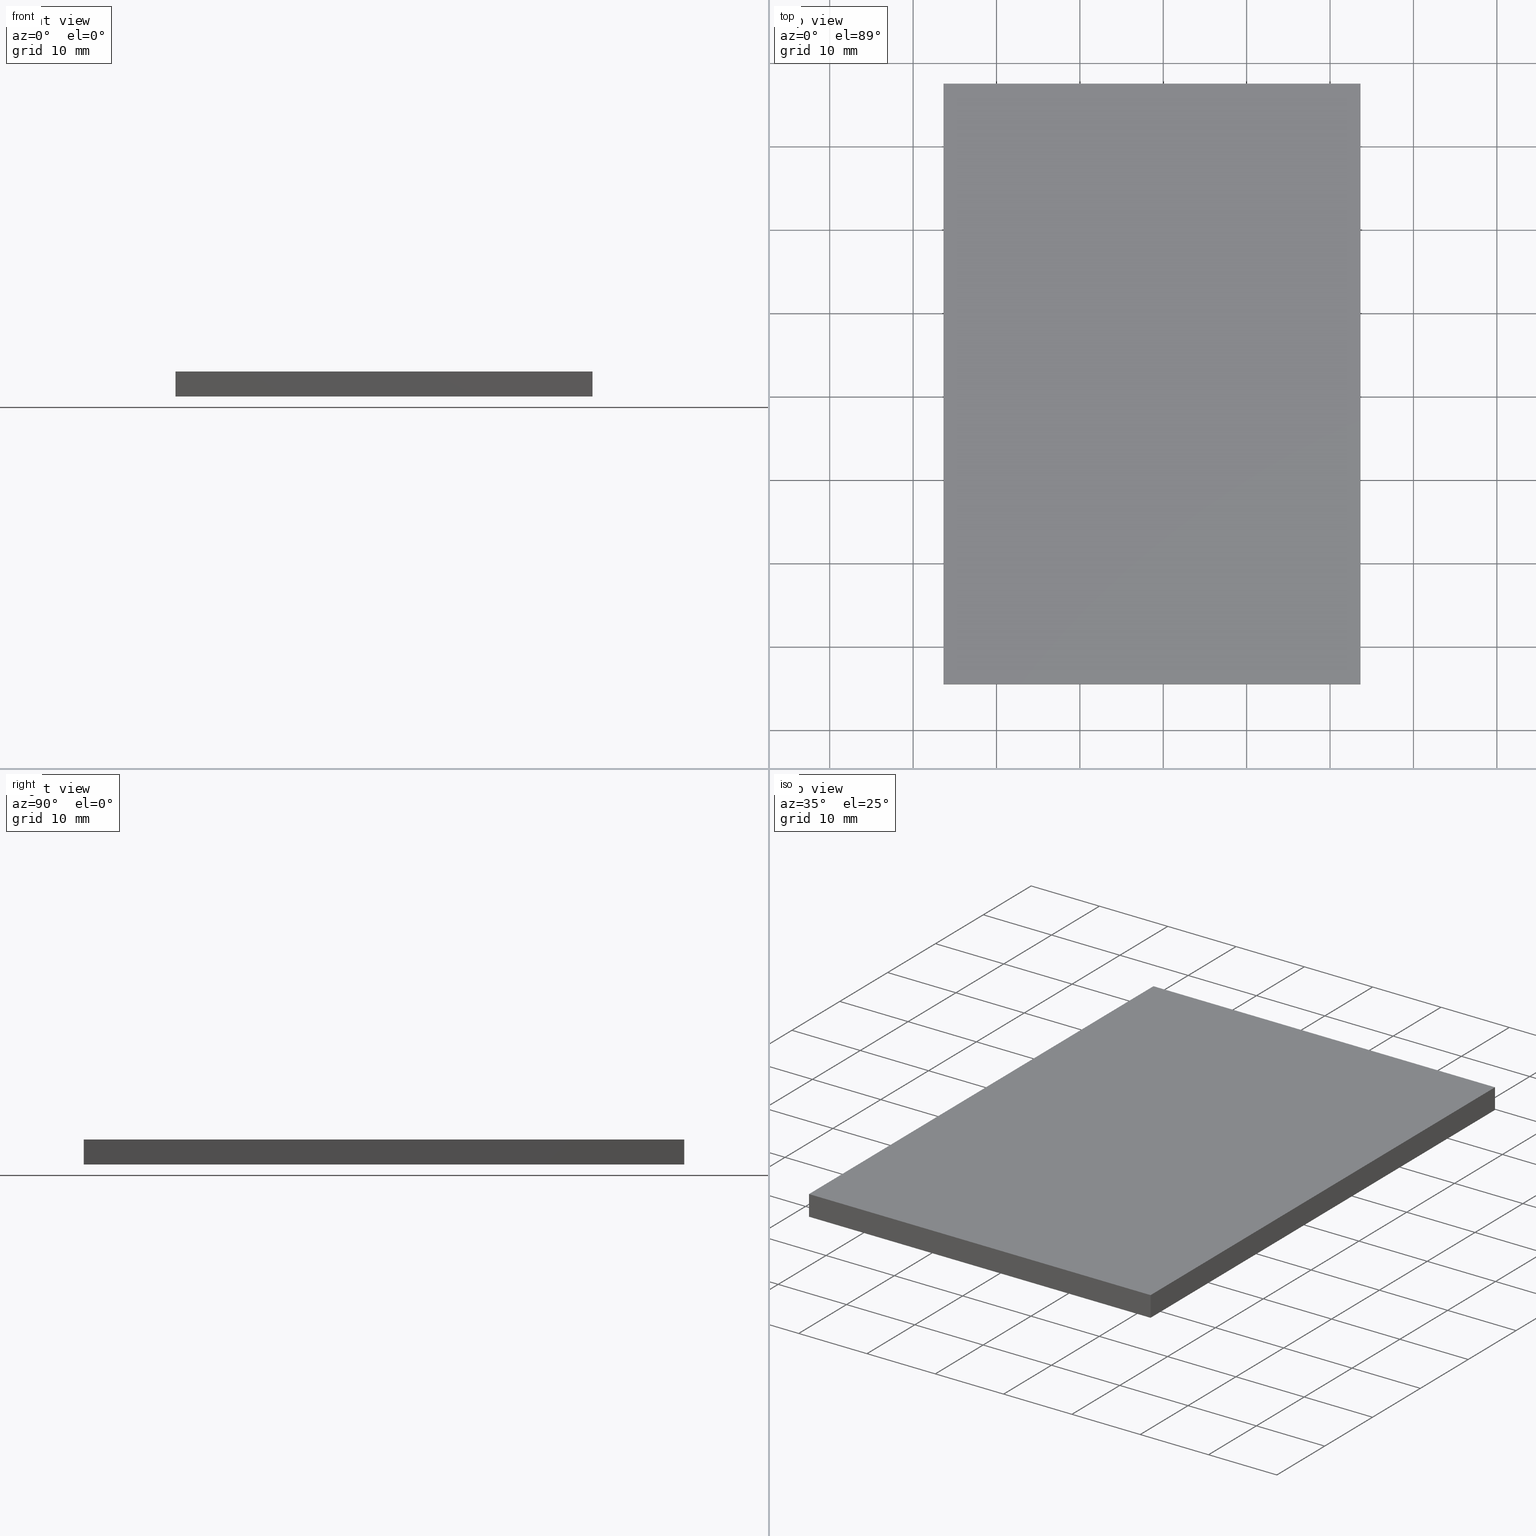
[diagram: canonical four-view strip — front | top / right | iso, engineering-drawing reading convention]
A machine part, canonical four-view strip (front | top / right | iso — engineering-drawing reading convention). The complete STEP part file that produces these views, byte-faithful:
ISO-10303-21;
HEADER;
FILE_DESCRIPTION (( 'STEP AP203' ),
    '1' );
FILE_NAME ('340535.STEP',
    '2019-07-30T07:53:44',
    ( '' ),
    ( '' ),
    'SwSTEP 2.0',
    'SolidWorks 2016',
    '' );
FILE_SCHEMA (( 'CONFIG_CONTROL_DESIGN' ));
ENDSEC;

DATA;
#1 = CARTESIAN_POINT ( 'NONE',  ( -6.351626016260153700, -64.47967479674797200, 3.000000000000000000 ) ) ;
#2 = AXIS2_PLACEMENT_3D ( 'NONE', #311, #208, #27 ) ;
#3 = ADVANCED_BREP_SHAPE_REPRESENTATION ( '340535', ( #107, #2 ), #31 ) ;
#4 = CC_DESIGN_PERSON_AND_ORGANIZATION_ASSIGNMENT ( #105, #34, ( #228 ) ) ;
#5 = LOCAL_TIME ( 15, 53, 44.00000000000000000, #176 ) ;
#6 = PRODUCT_DEFINITION ( 'δ֪', '', #228, #178 ) ;
#7 = PERSON_AND_ORGANIZATION ( #199, #206 ) ;
#8 = LINE ( 'NONE', #118, #186 ) ;
#9 = PERSON_AND_ORGANIZATION ( #199, #206 ) ;
#10 = APPROVAL_STATUS ( 'not_yet_approved' ) ;
#11 = PRODUCT_DEFINITION ( 'δ֪', '', #312, #290 ) ;
#12 = DIRECTION ( 'NONE',  ( 1.000000000000000000, 0.0000000000000000000, 0.0000000000000000000 ) ) ;
#13 = APPLICATION_CONTEXT ( 'configuration controlled 3d designs of mechanical parts and assemblies' ) ;
#14 = DIRECTION ( 'NONE',  ( -0.0000000000000000000, 0.0000000000000000000, 1.000000000000000000 ) ) ;
#15 = PERSON_AND_ORGANIZATION_ROLE ( 'design_supplier' ) ;
#16 = DIRECTION ( 'NONE',  ( 0.0000000000000000000, 1.000000000000000000, 0.0000000000000000000 ) ) ;
#17 = APPROVAL_STATUS ( 'not_yet_approved' ) ;
#18 = CARTESIAN_POINT ( 'NONE',  ( -6.351626016260162500, 7.520325203252024700, 3.000000000000000000 ) ) ;
#19 = CC_DESIGN_PERSON_AND_ORGANIZATION_ASSIGNMENT ( #112, #193, ( #312 ) ) ;
#20 = VECTOR ( 'NONE', #134, 1000.000000000000000 ) ;
#21 = CARTESIAN_POINT ( 'NONE',  ( 0.0000000000000000000, 0.0000000000000000000, 0.0000000000000000000 ) ) ;
#22 = ORIENTED_EDGE ( 'NONE', *, *, #127, .T. ) ;
#23 = DIRECTION ( 'NONE',  ( -1.000000000000000000, -9.637352644315595200E-017, 0.0000000000000000000 ) ) ;
#24 = AXIS2_PLACEMENT_3D ( 'NONE', #274, #220, #102 ) ;
#25 = APPROVAL ( #214, 'δָ��' ) ;
#26 = DATE_AND_TIME ( #79, #309 ) ;
#27 = DIRECTION ( 'NONE',  ( 1.000000000000000000, 0.0000000000000000000, 0.0000000000000000000 ) ) ;
#28 = ORIENTED_EDGE ( 'NONE', *, *, #224, .T. ) ;
#29 = EDGE_LOOP ( 'NONE', ( #22, #314, #57, #277 ) ) ;
#30 = CALENDAR_DATE ( 2019, 30, 7 ) ;
#31 =( GEOMETRIC_REPRESENTATION_CONTEXT ( 3 ) GLOBAL_UNCERTAINTY_ASSIGNED_CONTEXT ( ( #286 ) ) GLOBAL_UNIT_ASSIGNED_CONTEXT ( ( #135, #41, #207 ) ) REPRESENTATION_CONTEXT ( 'NONE', 'WORKASPACE' ) );
#32 = LINE ( 'NONE', #301, #185 ) ;
#33 = DIRECTION ( 'NONE',  ( -1.000000000000000000, -0.0000000000000000000, -0.0000000000000000000 ) ) ;
#34 = PERSON_AND_ORGANIZATION_ROLE ( 'design_supplier' ) ;
#35 = ADVANCED_FACE ( 'NONE', ( #85 ), #151, .T. ) ;
#36 = APPROVAL_DATE_TIME ( #161, #128 ) ;
#37 = VECTOR ( 'NONE', #152, 1000.000000000000000 ) ;
#38 = CC_DESIGN_DATE_AND_TIME_ASSIGNMENT ( #307, #119, ( #6 ) ) ;
#39 = LINE ( 'NONE', #73, #37 ) ;
#40 = EDGE_CURVE ( 'NONE', #138, #247, #291, .T. ) ;
#41 =( NAMED_UNIT ( * ) PLANE_ANGLE_UNIT ( ) SI_UNIT ( $, .RADIAN. ) );
#42 = CALENDAR_DATE ( 2019, 30, 7 ) ;
#43 = CALENDAR_DATE ( 2019, 30, 7 ) ;
#44 = PERSON_AND_ORGANIZATION ( #199, #206 ) ;
#45 = DIRECTION ( 'NONE',  ( 0.0000000000000000000, 0.0000000000000000000, 1.000000000000000000 ) ) ;
#46 = DATE_AND_TIME ( #110, #183 ) ;
#47 = CARTESIAN_POINT ( 'NONE',  ( 43.64837398373984500, 7.520325203252024700, 3.000000000000000000 ) ) ;
#48 = VECTOR ( 'NONE', #213, 1000.000000000000000 ) ;
#49 = ORIENTED_EDGE ( 'NONE', *, *, #127, .F. ) ;
#50 = DIRECTION ( 'NONE',  ( -9.637352644315595200E-017, 1.000000000000000000, -0.0000000000000000000 ) ) ;
#51 = LOCAL_TIME ( 15, 53, 44.00000000000000000, #181 ) ;
#52 = LINE ( 'NONE', #235, #167 ) ;
#53 = CARTESIAN_POINT ( 'NONE',  ( -6.351626016260153700, -64.47967479674797200, 3.000000000000000000 ) ) ;
#54 = PERSON_AND_ORGANIZATION_ROLE ( 'classification_officer' ) ;
#55 = COORDINATED_UNIVERSAL_TIME_OFFSET ( 8, 0, .AHEAD. ) ;
#56 = CC_DESIGN_APPROVAL ( #25, ( #6 ) ) ;
#57 = ORIENTED_EDGE ( 'NONE', *, *, #159, .F. ) ;
#58 = PERSON_AND_ORGANIZATION_ROLE ( 'design_owner' ) ;
#59 = LINE ( 'NONE', #287, #106 ) ;
#60 = APPLICATION_CONTEXT ( 'configuration controlled 3d designs of mechanical parts and assemblies' ) ;
#61 = VECTOR ( 'NONE', #304, 1000.000000000000000 ) ;
#62 = ORIENTED_EDGE ( 'NONE', *, *, #198, .F. ) ;
#63 = FACE_OUTER_BOUND ( 'NONE', #122, .T. ) ;
#64 = CC_DESIGN_PERSON_AND_ORGANIZATION_ASSIGNMENT ( #142, #71, ( #84 ) ) ;
#65 = VERTEX_POINT ( 'NONE', #264 ) ;
#66 = CC_DESIGN_PERSON_AND_ORGANIZATION_ASSIGNMENT ( #280, #305, ( #150 ) ) ;
#67 = CC_DESIGN_PERSON_AND_ORGANIZATION_ASSIGNMENT ( #111, #149, ( #228 ) ) ;
#68 = CC_DESIGN_PERSON_AND_ORGANIZATION_ASSIGNMENT ( #140, #233, ( #6 ) ) ;
#69 = APPROVAL_PERSON_ORGANIZATION ( #188, #83, #265 ) ;
#70 = APPROVAL_PERSON_ORGANIZATION ( #141, #128, #126 ) ;
#71 = PERSON_AND_ORGANIZATION_ROLE ( 'classification_officer' ) ;
#72 = ORIENTED_EDGE ( 'NONE', *, *, #103, .F. ) ;
#73 = CARTESIAN_POINT ( 'NONE',  ( -6.351626016260162500, 7.520325203252024700, 0.0000000000000000000 ) ) ;
#74 = SHAPE_DEFINITION_REPRESENTATION ( #204, #3 ) ;
#75 = CC_DESIGN_DATE_AND_TIME_ASSIGNMENT ( #296, #261, ( #84 ) ) ;
#76 = DIRECTION ( 'NONE',  ( 0.0000000000000000000, -1.000000000000000000, 0.0000000000000000000 ) ) ;
#77 = ORIENTED_EDGE ( 'NONE', *, *, #187, .T. ) ;
#78 = APPROVAL_DATE_TIME ( #92, #170 ) ;
#79 = CALENDAR_DATE ( 2019, 30, 7 ) ;
#80 = DIRECTION ( 'NONE',  ( 1.000000000000000000, 1.204669080539449300E-016, -0.0000000000000000000 ) ) ;
#81 = APPROVAL_DATE_TIME ( #215, #252 ) ;
#82 = LOCAL_TIME ( 15, 53, 44.00000000000000000, #55 ) ;
#83 = APPROVAL ( #266, 'δָ��' ) ;
#84 = SECURITY_CLASSIFICATION ( '', '', #236 ) ;
#85 = FACE_OUTER_BOUND ( 'NONE', #137, .T. ) ;
#86 = LINE ( 'NONE', #269, #20 ) ;
#87 = EDGE_CURVE ( 'NONE', #65, #288, #32, .T. ) ;
#88 = APPROVAL ( #120, 'δָ��' ) ;
#89 = MECHANICAL_CONTEXT ( 'NONE', #255, 'mechanical' ) ;
#90 = ORIENTED_EDGE ( 'NONE', *, *, #177, .T. ) ;
#91 = APPLICATION_CONTEXT ( 'configuration controlled 3d designs of mechanical parts and assemblies' ) ;
#92 = DATE_AND_TIME ( #223, #246 ) ;
#93 = CARTESIAN_POINT ( 'NONE',  ( -6.351626016260162500, 7.520325203252024700, 3.000000000000000000 ) ) ;
#94 = CC_DESIGN_APPROVAL ( #83, ( #312 ) ) ;
#95 = CARTESIAN_POINT ( 'NONE',  ( -6.351626016260153700, -64.47967479674797200, 0.0000000000000000000 ) ) ;
#96 = DIRECTION ( 'NONE',  ( 1.204669080539449300E-016, -1.000000000000000000, 0.0000000000000000000 ) ) ;
#97 = DIRECTION ( 'NONE',  ( 0.0000000000000000000, -0.0000000000000000000, 1.000000000000000000 ) ) ;
#98 = DIRECTION ( 'NONE',  ( 0.0000000000000000000, -0.0000000000000000000, -1.000000000000000000 ) ) ;
#99 = DIRECTION ( 'NONE',  ( 1.000000000000000000, 0.0000000000000000000, 0.0000000000000000000 ) ) ;
#100 = FACE_OUTER_BOUND ( 'NONE', #173, .T. ) ;
#101 = APPROVAL_PERSON_ORGANIZATION ( #9, #25, #217 ) ;
#102 = DIRECTION ( 'NONE',  ( 1.000000000000000000, 0.0000000000000000000, 0.0000000000000000000 ) ) ;
#103 = EDGE_CURVE ( 'NONE', #267, #138, #39, .T. ) ;
#104 = CARTESIAN_POINT ( 'NONE',  ( -6.351626016260162500, 7.520325203252024700, 3.000000000000000000 ) ) ;
#105 = PERSON_AND_ORGANIZATION ( #199, #206 ) ;
#106 = VECTOR ( 'NONE', #115, 1000.000000000000000 ) ;
#107 = MANIFOLD_SOLID_BREP ( '͹̨-����1', #155 ) ;
#108 = COORDINATED_UNIVERSAL_TIME_OFFSET ( 8, 0, .AHEAD. ) ;
#109 = PLANE ( 'NONE',  #190 ) ;
#110 = CALENDAR_DATE ( 2019, 30, 7 ) ;
#111 = PERSON_AND_ORGANIZATION ( #199, #206 ) ;
#112 = PERSON_AND_ORGANIZATION ( #199, #206 ) ;
#113 = DIRECTION ( 'NONE',  ( -0.0000000000000000000, -0.0000000000000000000, -1.000000000000000000 ) ) ;
#114 = LOCAL_TIME ( 15, 53, 44.00000000000000000, #163 ) ;
#115 = DIRECTION ( 'NONE',  ( 1.000000000000000000, 0.0000000000000000000, 0.0000000000000000000 ) ) ;
#116 = LINE ( 'NONE', #298, #61 ) ;
#117 = APPROVAL_ROLE ( '' ) ;
#118 = CARTESIAN_POINT ( 'NONE',  ( -6.351626016260162500, 7.520325203252024700, 3.000000000000000000 ) ) ;
#119 = DATE_TIME_ROLE ( 'creation_date' ) ;
#120 = APPROVAL_STATUS ( 'not_yet_approved' ) ;
#121 = CALENDAR_DATE ( 2019, 30, 7 ) ;
#122 = EDGE_LOOP ( 'NONE', ( #131, #254, #62, #225 ) ) ;
#123 = PLANE ( 'NONE',  #24 ) ;
#124 = COORDINATED_UNIVERSAL_TIME_OFFSET ( 8, 0, .AHEAD. ) ;
#125 = DIRECTION ( 'NONE',  ( -0.0000000000000000000, -0.0000000000000000000, -1.000000000000000000 ) ) ;
#126 = APPROVAL_ROLE ( '' ) ;
#127 = EDGE_CURVE ( 'NONE', #288, #267, #282, .T. ) ;
#128 = APPROVAL ( #242, 'δָ��' ) ;
#129 = CARTESIAN_POINT ( 'NONE',  ( 43.64837398373985200, -64.47967479674797200, 0.0000000000000000000 ) ) ;
#130 = APPROVAL_PERSON_ORGANIZATION ( #222, #88, #172 ) ;
#131 = ORIENTED_EDGE ( 'NONE', *, *, #103, .T. ) ;
#132 = LOCAL_TIME ( 15, 53, 44.00000000000000000, #295 ) ;
#133 = PERSON_AND_ORGANIZATION ( #199, #206 ) ;
#134 = DIRECTION ( 'NONE',  ( -0.0000000000000000000, -0.0000000000000000000, -1.000000000000000000 ) ) ;
#135 =( LENGTH_UNIT ( ) NAMED_UNIT ( * ) SI_UNIT ( .MILLI., .METRE. ) );
#136 = DIRECTION ( 'NONE',  ( 9.637352644315595200E-017, -1.000000000000000000, 0.0000000000000000000 ) ) ;
#137 = EDGE_LOOP ( 'NONE', ( #302, #28, #196, #263 ) ) ;
#138 = VERTEX_POINT ( 'NONE', #259 ) ;
#139 = CALENDAR_DATE ( 2019, 30, 7 ) ;
#140 = PERSON_AND_ORGANIZATION ( #199, #206 ) ;
#141 = PERSON_AND_ORGANIZATION ( #199, #206 ) ;
#142 = PERSON_AND_ORGANIZATION ( #199, #206 ) ;
#143 = ORIENTED_EDGE ( 'NONE', *, *, #224, .F. ) ;
#144 = PRODUCT_RELATED_PRODUCT_CATEGORY ( 'detail', '', ( #150 ) ) ;
#145 = ORIENTED_EDGE ( 'NONE', *, *, #87, .F. ) ;
#146 = APPROVAL_PERSON_ORGANIZATION ( #44, #170, #117 ) ;
#147 = MECHANICAL_CONTEXT ( 'NONE', #13, 'mechanical' ) ;
#148 = DIRECTION ( 'NONE',  ( -0.0000000000000000000, -0.0000000000000000000, -1.000000000000000000 ) ) ;
#149 = PERSON_AND_ORGANIZATION_ROLE ( 'creator' ) ;
#150 = PRODUCT ( '340535', '340535', '', ( #147 ) ) ;
#151 = PLANE ( 'NONE',  #203 ) ;
#152 = DIRECTION ( 'NONE',  ( -1.000000000000000000, -0.0000000000000000000, -0.0000000000000000000 ) ) ;
#153 = APPLICATION_PROTOCOL_DEFINITION ( 'international standard', 'config_control_design', 1994, #60 ) ;
#154 = CC_DESIGN_PERSON_AND_ORGANIZATION_ASSIGNMENT ( #276, #54, ( #226 ) ) ;
#155 = CLOSED_SHELL ( 'NONE', ( #283, #229, #250, #211, #35, #262 ) ) ;
#156 = VECTOR ( 'NONE', #148, 1000.000000000000000 ) ;
#157 = LOCAL_TIME ( 15, 53, 44.00000000000000000, #279 ) ;
#158 = PRODUCT_DEFINITION_SHAPE ( 'NONE', 'NONE',  #11 ) ;
#159 = EDGE_CURVE ( 'NONE', #65, #313, #310, .T. ) ;
#160 = CARTESIAN_POINT ( 'NONE',  ( 43.64837398373984500, 7.520325203252024700, 3.000000000000000000 ) ) ;
#161 = DATE_AND_TIME ( #299, #184 ) ;
#162 = CC_DESIGN_APPROVAL ( #88, ( #84 ) ) ;
#163 = COORDINATED_UNIVERSAL_TIME_OFFSET ( 8, 0, .AHEAD. ) ;
#164 = AXIS2_PLACEMENT_3D ( 'NONE', #93, #76, #98 ) ;
#165 = PRODUCT_RELATED_PRODUCT_CATEGORY ( 'detail', '', ( #179 ) ) ;
#166 = VERTEX_POINT ( 'NONE', #1 ) ;
#167 = VECTOR ( 'NONE', #12, 1000.000000000000000 ) ;
#168 = VECTOR ( 'NONE', #50, 1000.000000000000000 ) ;
#169 = PERSON_AND_ORGANIZATION ( #199, #206 ) ;
#170 = APPROVAL ( #17, 'δָ��' ) ;
#171 = CARTESIAN_POINT ( 'NONE',  ( 0.0000000000000000000, 0.0000000000000000000, 3.000000000000000000 ) ) ;
#172 = APPROVAL_ROLE ( '' ) ;
#173 = EDGE_LOOP ( 'NONE', ( #201, #182, #272, #175 ) ) ;
#174 = DATE_TIME_ROLE ( 'classification_date' ) ;
#175 = ORIENTED_EDGE ( 'NONE', *, *, #275, .T. ) ;
#176 = COORDINATED_UNIVERSAL_TIME_OFFSET ( 8, 0, .AHEAD. ) ;
#177 = EDGE_CURVE ( 'NONE', #247, #288, #59, .T. ) ;
#178 = DESIGN_CONTEXT ( 'detailed design', #60, 'design' ) ;
#179 = PRODUCT ( '340535', '340535', '', ( #89 ) ) ;
#180 = CC_DESIGN_APPROVAL ( #252, ( #228 ) ) ;
#181 = COORDINATED_UNIVERSAL_TIME_OFFSET ( 8, 0, .AHEAD. ) ;
#182 = ORIENTED_EDGE ( 'NONE', *, *, #187, .F. ) ;
#183 = LOCAL_TIME ( 15, 53, 44.00000000000000000, #124 ) ;
#184 = LOCAL_TIME ( 15, 53, 44.00000000000000000, #108 ) ;
#185 = VECTOR ( 'NONE', #125, 1000.000000000000000 ) ;
#186 = VECTOR ( 'NONE', #33, 1000.000000000000000 ) ;
#187 = EDGE_CURVE ( 'NONE', #166, #247, #243, .T. ) ;
#188 = PERSON_AND_ORGANIZATION ( #199, #206 ) ;
#189 = CC_DESIGN_PERSON_AND_ORGANIZATION_ASSIGNMENT ( #133, #15, ( #312 ) ) ;
#190 = AXIS2_PLACEMENT_3D ( 'NONE', #271, #23, #136 ) ;
#191 = APPROVAL_DATE_TIME ( #46, #83 ) ;
#192 = APPLICATION_PROTOCOL_DEFINITION ( 'international standard', 'config_control_design', 1994, #255 ) ;
#193 = PERSON_AND_ORGANIZATION_ROLE ( 'creator' ) ;
#194 = CARTESIAN_POINT ( 'NONE',  ( 43.64837398373984500, 7.520325203252024700, 0.0000000000000000000 ) ) ;
#195 = APPLICATION_PROTOCOL_DEFINITION ( 'international standard', 'config_control_design', 1994, #91 ) ;
#196 = ORIENTED_EDGE ( 'NONE', *, *, #159, .T. ) ;
#197 = APPROVAL_DATE_TIME ( #268, #25 ) ;
#198 = EDGE_CURVE ( 'NONE', #313, #212, #8, .T. ) ;
#199 = PERSON ( 'δָ��', 'δָ��', 'δָ��', ('δָ��'), ('δָ��'), ('δָ��') ) ;
#200 = CALENDAR_DATE ( 2019, 30, 7 ) ;
#201 = ORIENTED_EDGE ( 'NONE', *, *, #40, .T. ) ;
#202 = CC_DESIGN_APPROVAL ( #128, ( #226 ) ) ;
#203 = AXIS2_PLACEMENT_3D ( 'NONE', #171, #14, #99 ) ;
#204 = PRODUCT_DEFINITION_SHAPE ( 'NONE', 'NONE',  #6 ) ;
#205 = ORIENTED_EDGE ( 'NONE', *, *, #40, .F. ) ;
#206 = ORGANIZATION ( 'δָ��', 'δָ��', '' ) ;
#207 =( NAMED_UNIT ( * ) SI_UNIT ( $, .STERADIAN. ) SOLID_ANGLE_UNIT ( ) );
#208 = DIRECTION ( 'NONE',  ( 0.0000000000000000000, 0.0000000000000000000, 1.000000000000000000 ) ) ;
#209 = DIRECTION ( 'NONE',  ( 1.000000000000000000, 0.0000000000000000000, 0.0000000000000000000 ) ) ;
#210 = EDGE_CURVE ( 'NONE', #313, #267, #289, .T. ) ;
#211 = ADVANCED_FACE ( 'NONE', ( #63 ), #237, .F. ) ;
#212 = VERTEX_POINT ( 'NONE', #18 ) ;
#213 = DIRECTION ( 'NONE',  ( -9.637352644315595200E-017, 1.000000000000000000, -0.0000000000000000000 ) ) ;
#214 = APPROVAL_STATUS ( 'not_yet_approved' ) ;
#215 = DATE_AND_TIME ( #121, #114 ) ;
#216 = DATE_AND_TIME ( #139, #5 ) ;
#217 = APPROVAL_ROLE ( '' ) ;
#218 = CC_DESIGN_PERSON_AND_ORGANIZATION_ASSIGNMENT ( #169, #58, ( #179 ) ) ;
#219 = VECTOR ( 'NONE', #113, 1000.000000000000000 ) ;
#220 = DIRECTION ( 'NONE',  ( -0.0000000000000000000, 0.0000000000000000000, 1.000000000000000000 ) ) ;
#221 = PLANE ( 'NONE',  #270 ) ;
#222 = PERSON_AND_ORGANIZATION ( #199, #206 ) ;
#223 = CALENDAR_DATE ( 2019, 30, 7 ) ;
#224 = EDGE_CURVE ( 'NONE', #166, #65, #52, .T. ) ;
#225 = ORIENTED_EDGE ( 'NONE', *, *, #210, .T. ) ;
#226 = SECURITY_CLASSIFICATION ( '', '', #239 ) ;
#227 = CC_DESIGN_DATE_AND_TIME_ASSIGNMENT ( #26, #174, ( #226 ) ) ;
#228 = PRODUCT_DEFINITION_FORMATION_WITH_SPECIFIED_SOURCE ( '�κ�', '', #150, .NOT_KNOWN. ) ;
#229 = ADVANCED_FACE ( 'NONE', ( #315 ), #300, .F. ) ;
#230 = AXIS2_PLACEMENT_3D ( 'NONE', #21, #45, #209 ) ;
#231 = EDGE_LOOP ( 'NONE', ( #205, #72, #49, #241 ) ) ;
#232 = CC_DESIGN_SECURITY_CLASSIFICATION ( #84, ( #228 ) ) ;
#233 = PERSON_AND_ORGANIZATION_ROLE ( 'creator' ) ;
#234 = PERSON_AND_ORGANIZATION_ROLE ( 'creator' ) ;
#235 = CARTESIAN_POINT ( 'NONE',  ( -6.351626016260153700, -64.47967479674797200, 3.000000000000000000 ) ) ;
#236 = SECURITY_CLASSIFICATION_LEVEL ( 'unclassified' ) ;
#237 = PLANE ( 'NONE',  #164 ) ;
#238 = CARTESIAN_POINT ( 'NONE',  ( -6.351626016260162500, 7.520325203252024700, 0.0000000000000000000 ) ) ;
#239 = SECURITY_CLASSIFICATION_LEVEL ( 'unclassified' ) ;
#240 = DATE_AND_TIME ( #200, #82 ) ;
#241 = ORIENTED_EDGE ( 'NONE', *, *, #177, .F. ) ;
#242 = APPROVAL_STATUS ( 'not_yet_approved' ) ;
#243 = LINE ( 'NONE', #294, #156 ) ;
#244 = COORDINATED_UNIVERSAL_TIME_OFFSET ( 8, 0, .AHEAD. ) ;
#245 = CARTESIAN_POINT ( 'NONE',  ( 43.64837398373984500, 7.520325203252024700, 0.0000000000000000000 ) ) ;
#246 = LOCAL_TIME ( 15, 53, 44.00000000000000000, #284 ) ;
#247 = VERTEX_POINT ( 'NONE', #95 ) ;
#248 = FACE_OUTER_BOUND ( 'NONE', #231, .T. ) ;
#249 = EDGE_CURVE ( 'NONE', #212, #166, #116, .T. ) ;
#250 = ADVANCED_FACE ( 'NONE', ( #308 ), #109, .F. ) ;
#251 = EDGE_LOOP ( 'NONE', ( #90, #145, #143, #77 ) ) ;
#252 = APPROVAL ( #10, 'δָ��' ) ;
#253 = VECTOR ( 'NONE', #96, 1000.000000000000000 ) ;
#254 = ORIENTED_EDGE ( 'NONE', *, *, #275, .F. ) ;
#255 = APPLICATION_CONTEXT ( 'configuration controlled 3d designs of mechanical parts and assemblies' ) ;
#256 = PERSON_AND_ORGANIZATION ( #199, #206 ) ;
#257 = CARTESIAN_POINT ( 'NONE',  ( 43.64837398373984500, 7.520325203252024700, 3.000000000000000000 ) ) ;
#258 = DATE_TIME_ROLE ( 'creation_date' ) ;
#259 = CARTESIAN_POINT ( 'NONE',  ( -6.351626016260162500, 7.520325203252024700, 0.0000000000000000000 ) ) ;
#260 = CC_DESIGN_PERSON_AND_ORGANIZATION_ASSIGNMENT ( #256, #234, ( #11 ) ) ;
#261 = DATE_TIME_ROLE ( 'classification_date' ) ;
#262 = ADVANCED_FACE ( 'NONE', ( #248 ), #123, .F. ) ;
#263 = ORIENTED_EDGE ( 'NONE', *, *, #198, .T. ) ;
#264 = CARTESIAN_POINT ( 'NONE',  ( 43.64837398373985200, -64.47967479674797200, 3.000000000000000000 ) ) ;
#265 = APPROVAL_ROLE ( '' ) ;
#266 = APPROVAL_STATUS ( 'not_yet_approved' ) ;
#267 = VERTEX_POINT ( 'NONE', #245 ) ;
#268 = DATE_AND_TIME ( #30, #157 ) ;
#269 = CARTESIAN_POINT ( 'NONE',  ( -6.351626016260162500, 7.520325203252024700, 3.000000000000000000 ) ) ;
#270 = AXIS2_PLACEMENT_3D ( 'NONE', #104, #80, #273 ) ;
#271 = CARTESIAN_POINT ( 'NONE',  ( 43.64837398373984500, 7.520325203252024700, 3.000000000000000000 ) ) ;
#272 = ORIENTED_EDGE ( 'NONE', *, *, #249, .F. ) ;
#273 = DIRECTION ( 'NONE',  ( -1.204669080539449300E-016, 1.000000000000000000, 0.0000000000000000000 ) ) ;
#274 = CARTESIAN_POINT ( 'NONE',  ( 0.0000000000000000000, 0.0000000000000000000, 0.0000000000000000000 ) ) ;
#275 = EDGE_CURVE ( 'NONE', #212, #138, #86, .T. ) ;
#276 = PERSON_AND_ORGANIZATION ( #199, #206 ) ;
#277 = ORIENTED_EDGE ( 'NONE', *, *, #87, .T. ) ;
#278 = APPROVAL_PERSON_ORGANIZATION ( #7, #252, #297 ) ;
#279 = COORDINATED_UNIVERSAL_TIME_OFFSET ( 8, 0, .AHEAD. ) ;
#280 = PERSON_AND_ORGANIZATION ( #199, #206 ) ;
#281 = CC_DESIGN_SECURITY_CLASSIFICATION ( #226, ( #312 ) ) ;
#282 = LINE ( 'NONE', #194, #48 ) ;
#283 = ADVANCED_FACE ( 'NONE', ( #100 ), #221, .F. ) ;
#284 = COORDINATED_UNIVERSAL_TIME_OFFSET ( 8, 0, .AHEAD. ) ;
#285 = CC_DESIGN_DATE_AND_TIME_ASSIGNMENT ( #216, #258, ( #11 ) ) ;
#286 = UNCERTAINTY_MEASURE_WITH_UNIT (LENGTH_MEASURE( 1.000000000000000100E-005 ), #135, 'distance_accuracy_value', 'NONE');
#287 = CARTESIAN_POINT ( 'NONE',  ( -6.351626016260153700, -64.47967479674797200, 0.0000000000000000000 ) ) ;
#288 = VERTEX_POINT ( 'NONE', #129 ) ;
#289 = LINE ( 'NONE', #47, #219 ) ;
#290 = DESIGN_CONTEXT ( 'detailed design', #91, 'design' ) ;
#291 = LINE ( 'NONE', #238, #253 ) ;
#292 = CC_DESIGN_APPROVAL ( #170, ( #11 ) ) ;
#293 = APPLICATION_PROTOCOL_DEFINITION ( 'international standard', 'config_control_design', 1994, #13 ) ;
#294 = CARTESIAN_POINT ( 'NONE',  ( -6.351626016260153700, -64.47967479674797200, 3.000000000000000000 ) ) ;
#295 = COORDINATED_UNIVERSAL_TIME_OFFSET ( 8, 0, .AHEAD. ) ;
#296 = DATE_AND_TIME ( #43, #51 ) ;
#297 = APPROVAL_ROLE ( '' ) ;
#298 = CARTESIAN_POINT ( 'NONE',  ( -6.351626016260162500, 7.520325203252024700, 3.000000000000000000 ) ) ;
#299 = CALENDAR_DATE ( 2019, 30, 7 ) ;
#300 = PLANE ( 'NONE',  #303 ) ;
#301 = CARTESIAN_POINT ( 'NONE',  ( 43.64837398373985200, -64.47967479674797200, 3.000000000000000000 ) ) ;
#302 = ORIENTED_EDGE ( 'NONE', *, *, #249, .T. ) ;
#303 = AXIS2_PLACEMENT_3D ( 'NONE', #53, #16, #97 ) ;
#304 = DIRECTION ( 'NONE',  ( 1.204669080539449300E-016, -1.000000000000000000, 0.0000000000000000000 ) ) ;
#305 = PERSON_AND_ORGANIZATION_ROLE ( 'design_owner' ) ;
#306 = APPROVAL_DATE_TIME ( #240, #88 ) ;
#307 = DATE_AND_TIME ( #42, #132 ) ;
#308 = FACE_OUTER_BOUND ( 'NONE', #29, .T. ) ;
#309 = LOCAL_TIME ( 15, 53, 44.00000000000000000, #244 ) ;
#310 = LINE ( 'NONE', #257, #168 ) ;
#311 = CARTESIAN_POINT ( 'NONE',  ( 0.0000000000000000000, 0.0000000000000000000, 0.0000000000000000000 ) ) ;
#312 = PRODUCT_DEFINITION_FORMATION_WITH_SPECIFIED_SOURCE ( '�κ�', '', #179, .NOT_KNOWN. ) ;
#313 = VERTEX_POINT ( 'NONE', #160 ) ;
#314 = ORIENTED_EDGE ( 'NONE', *, *, #210, .F. ) ;
#315 = FACE_OUTER_BOUND ( 'NONE', #251, .T. ) ;
ENDSEC;
END-ISO-10303-21;
